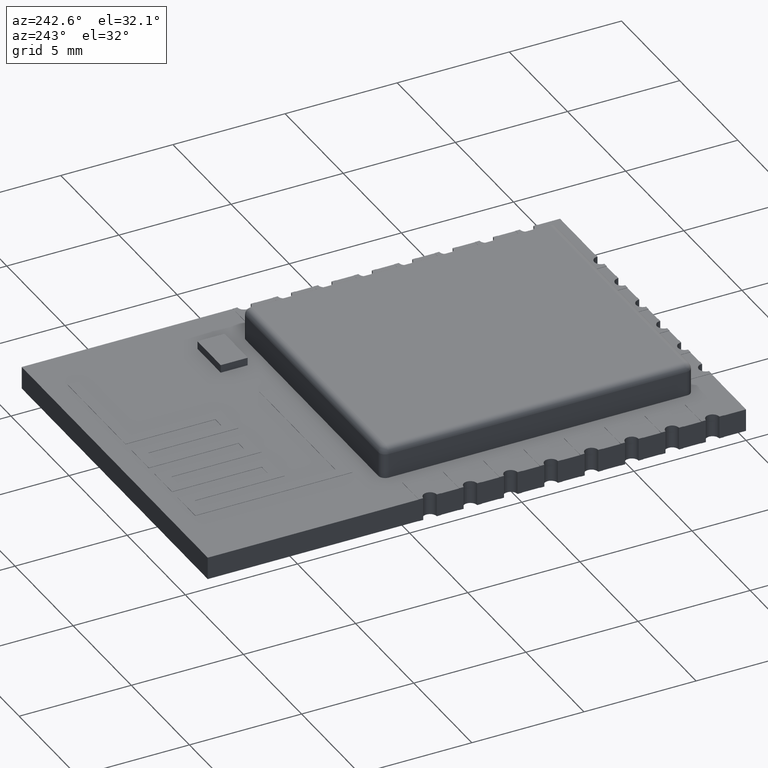
[diagram: clean part render]
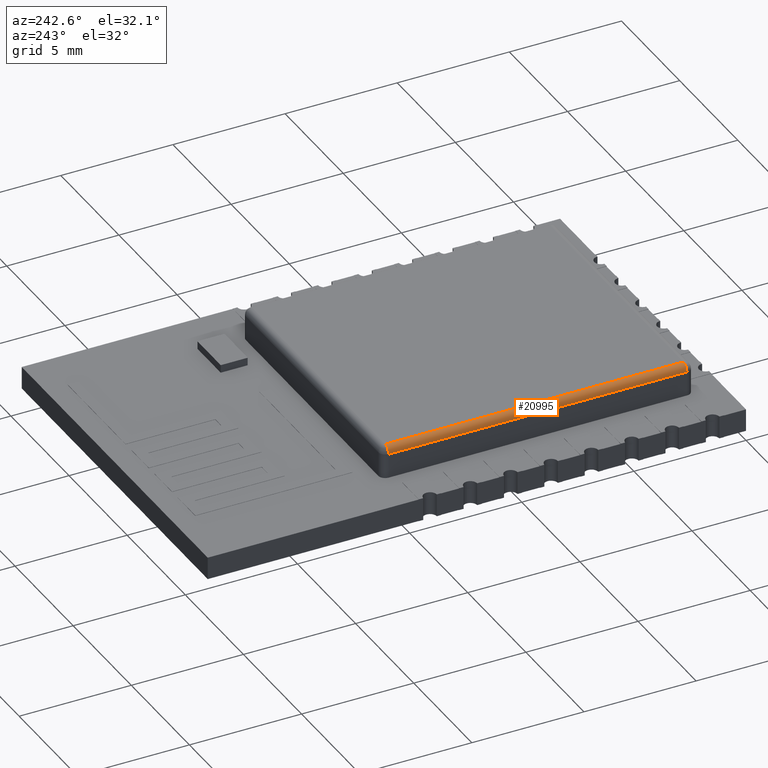
[diagram: same view with one face highlighted and labeled with its STEP entity id]
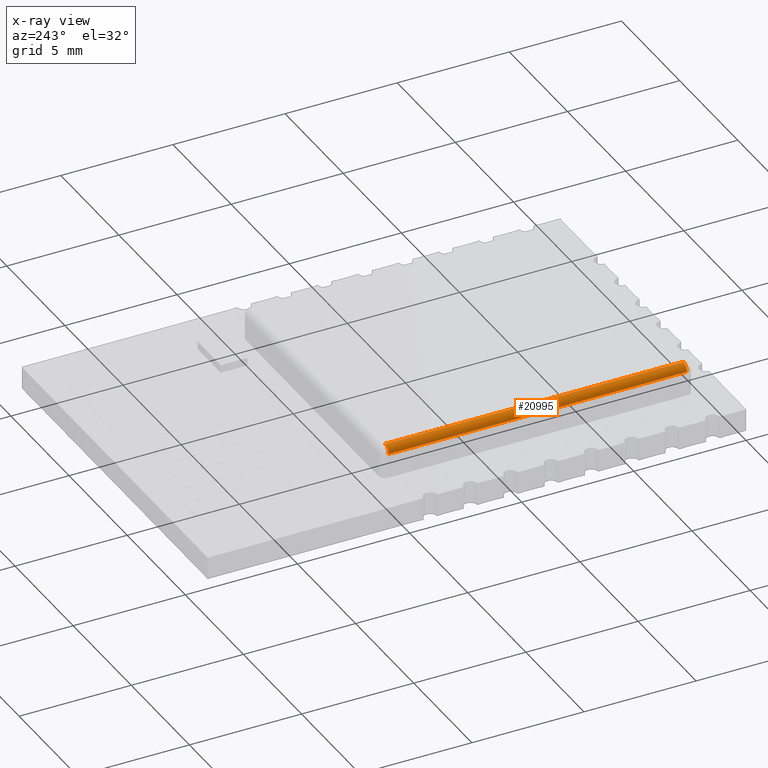
[diagram: x-ray of the same camera — body ghosted, the highlighted face saturated]
A machine part, auxiliary view. The second image highlights one B-rep face of the part: STEP entity #20995.
The next image is the same camera in x-ray: the body ghosted, the highlighted face saturated — about 0% of this face is hidden behind the body in this view.
In plain terms, the highlighted cylindrical surface (edge-blend (fillet) strip) has radius 0.3 mm, axis along (0, -1, 0).
Its self-contained STEP definition (entity closure, byte-faithful):
#2867 = PLANE('',#2868);
#2868 = AXIS2_PLACEMENT_3D('',#2869,#2870,#2871);
#2869 = CARTESIAN_POINT('',(2.,15.2,1.));
#2870 = DIRECTION('',(1.,0.,0.));
#2871 = DIRECTION('',(0.,-1.,0.));
#11102 = VERTEX_POINT('',#11103);
#11103 = CARTESIAN_POINT('',(2.,14.9,2.1));
#11139 = SPHERICAL_SURFACE('',#11140,0.3);
#11140 = AXIS2_PLACEMENT_3D('',#11141,#11142,#11143);
#11141 = CARTESIAN_POINT('',(2.3,14.9,2.1));
#11142 = DIRECTION('',(-0.,-0.,-1.));
#11143 = DIRECTION('',(0.,1.,0.));
#11157 = EDGE_CURVE('',#11102,#11158,#11160,.T.);
#11158 = VERTEX_POINT('',#11159);
#11159 = CARTESIAN_POINT('',(2.,1.6,2.1));
#11160 = SURFACE_CURVE('',#11161,(#11165,#11172),.PCURVE_S1.);
#11161 = LINE('',#11162,#11163);
#11162 = CARTESIAN_POINT('',(2.,15.2,2.1));
#11163 = VECTOR('',#11164,1.);
#11164 = DIRECTION('',(0.,-1.,0.));
#11165 = PCURVE('',#2867,#11166);
#11166 = DEFINITIONAL_REPRESENTATION('',(#11167),#11171);
#11167 = LINE('',#11168,#11169);
#11168 = CARTESIAN_POINT('',(0.,-1.1));
#11169 = VECTOR('',#11170,1.);
#11170 = DIRECTION('',(1.,0.));
#11171 = ( GEOMETRIC_REPRESENTATION_CONTEXT(2) 
PARAMETRIC_REPRESENTATION_CONTEXT() REPRESENTATION_CONTEXT('2D SPACE',''
  ) );
#11172 = PCURVE('',#11173,#11178);
#11173 = CYLINDRICAL_SURFACE('',#11174,0.3);
#11174 = AXIS2_PLACEMENT_3D('',#11175,#11176,#11177);
#11175 = CARTESIAN_POINT('',(2.3,15.2,2.1));
#11176 = DIRECTION('',(0.,-1.,0.));
#11177 = DIRECTION('',(-1.,0.,0.));
#11178 = DEFINITIONAL_REPRESENTATION('',(#11179),#11183);
#11179 = LINE('',#11180,#11181);
#11180 = CARTESIAN_POINT('',(-0.,0.));
#11181 = VECTOR('',#11182,1.);
#11182 = DIRECTION('',(-0.,1.));
#11183 = ( GEOMETRIC_REPRESENTATION_CONTEXT(2) 
PARAMETRIC_REPRESENTATION_CONTEXT() REPRESENTATION_CONTEXT('2D SPACE',''
  ) );
#11226 = SPHERICAL_SURFACE('',#11227,0.3);
#11227 = AXIS2_PLACEMENT_3D('',#11228,#11229,#11230);
#11228 = CARTESIAN_POINT('',(2.3,1.6,2.1));
#11229 = DIRECTION('',(-0.,-0.,-1.));
#11230 = DIRECTION('',(0.,-1.,0.));
#20755 = VERTEX_POINT('',#20756);
#20756 = CARTESIAN_POINT('',(2.3,1.6,2.4));
#20792 = PLANE('',#20793);
#20793 = AXIS2_PLACEMENT_3D('',#20794,#20795,#20796);
#20794 = CARTESIAN_POINT('',(8.,8.25,2.4));
#20795 = DIRECTION('',(0.,0.,1.));
#20796 = DIRECTION('',(1.,0.,0.));
#20928 = VERTEX_POINT('',#20929);
#20929 = CARTESIAN_POINT('',(2.3,14.9,2.4));
#20975 = EDGE_CURVE('',#20928,#11102,#20976,.T.);
#20976 = SURFACE_CURVE('',#20977,(#20982,#20988),.PCURVE_S1.);
#20977 = CIRCLE('',#20978,0.3);
#20978 = AXIS2_PLACEMENT_3D('',#20979,#20980,#20981);
#20979 = CARTESIAN_POINT('',(2.3,14.9,2.1));
#20980 = DIRECTION('',(-2.947812203983E-15,-1.,-0.));
#20981 = DIRECTION('',(-1.,2.947812203983E-15,0.));
#20982 = PCURVE('',#11139,#20983);
#20983 = DEFINITIONAL_REPRESENTATION('',(#20984),#20987);
#20984 = B_SPLINE_CURVE_WITH_KNOTS('',1,(#20985,#20986),.UNSPECIFIED.,
  .F.,.F.,(2,2),(4.712388980385,6.28318530718),
  .PIECEWISE_BEZIER_KNOTS.);
#20985 = CARTESIAN_POINT('',(-1.570796326795,-1.570796326795));
#20986 = CARTESIAN_POINT('',(-1.570796326795,0.));
#20987 = ( GEOMETRIC_REPRESENTATION_CONTEXT(2) 
PARAMETRIC_REPRESENTATION_CONTEXT() REPRESENTATION_CONTEXT('2D SPACE',''
  ) );
#20988 = PCURVE('',#11173,#20989);
#20989 = DEFINITIONAL_REPRESENTATION('',(#20990),#20993);
#20990 = B_SPLINE_CURVE_WITH_KNOTS('',1,(#20991,#20992),.UNSPECIFIED.,
  .F.,.F.,(2,2),(4.712388980385,6.28318530718),
  .PIECEWISE_BEZIER_KNOTS.);
#20991 = CARTESIAN_POINT('',(-1.570796326795,0.3));
#20992 = CARTESIAN_POINT('',(0.,0.3));
#20993 = ( GEOMETRIC_REPRESENTATION_CONTEXT(2) 
PARAMETRIC_REPRESENTATION_CONTEXT() REPRESENTATION_CONTEXT('2D SPACE',''
  ) );
#20995 = ADVANCED_FACE('',(#20996),#11173,.T.);
#20996 = FACE_BOUND('',#20997,.F.);
#20997 = EDGE_LOOP('',(#20998,#20999,#21020,#21040));
#20998 = ORIENTED_EDGE('',*,*,#20975,.F.);
#20999 = ORIENTED_EDGE('',*,*,#21000,.T.);
#21000 = EDGE_CURVE('',#20928,#20755,#21001,.T.);
#21001 = SURFACE_CURVE('',#21002,(#21006,#21013),.PCURVE_S1.);
#21002 = LINE('',#21003,#21004);
#21003 = CARTESIAN_POINT('',(2.3,15.2,2.4));
#21004 = VECTOR('',#21005,1.);
#21005 = DIRECTION('',(0.,-1.,0.));
#21006 = PCURVE('',#11173,#21007);
#21007 = DEFINITIONAL_REPRESENTATION('',(#21008),#21012);
#21008 = LINE('',#21009,#21010);
#21009 = CARTESIAN_POINT('',(-1.570796326795,0.));
#21010 = VECTOR('',#21011,1.);
#21011 = DIRECTION('',(-0.,1.));
#21012 = ( GEOMETRIC_REPRESENTATION_CONTEXT(2) 
PARAMETRIC_REPRESENTATION_CONTEXT() REPRESENTATION_CONTEXT('2D SPACE',''
  ) );
#21013 = PCURVE('',#20792,#21014);
#21014 = DEFINITIONAL_REPRESENTATION('',(#21015),#21019);
#21015 = LINE('',#21016,#21017);
#21016 = CARTESIAN_POINT('',(-5.7,6.95));
#21017 = VECTOR('',#21018,1.);
#21018 = DIRECTION('',(0.,-1.));
#21019 = ( GEOMETRIC_REPRESENTATION_CONTEXT(2) 
PARAMETRIC_REPRESENTATION_CONTEXT() REPRESENTATION_CONTEXT('2D SPACE',''
  ) );
#21020 = ORIENTED_EDGE('',*,*,#21021,.T.);
#21021 = EDGE_CURVE('',#20755,#11158,#21022,.T.);
#21022 = SURFACE_CURVE('',#21023,(#21028,#21034),.PCURVE_S1.);
#21023 = CIRCLE('',#21024,0.3);
#21024 = AXIS2_PLACEMENT_3D('',#21025,#21026,#21027);
#21025 = CARTESIAN_POINT('',(2.3,1.6,2.1));
#21026 = DIRECTION('',(6.123233995737E-17,-1.,0.));
#21027 = DIRECTION('',(-1.,-6.123233995737E-17,0.));
#21028 = PCURVE('',#11173,#21029);
#21029 = DEFINITIONAL_REPRESENTATION('',(#21030),#21033);
#21030 = B_SPLINE_CURVE_WITH_KNOTS('',1,(#21031,#21032),.UNSPECIFIED.,
  .F.,.F.,(2,2),(4.712388980385,6.28318530718),
  .PIECEWISE_BEZIER_KNOTS.);
#21031 = CARTESIAN_POINT('',(-1.570796326795,13.6));
#21032 = CARTESIAN_POINT('',(0.,13.6));
#21033 = ( GEOMETRIC_REPRESENTATION_CONTEXT(2) 
PARAMETRIC_REPRESENTATION_CONTEXT() REPRESENTATION_CONTEXT('2D SPACE',''
  ) );
#21034 = PCURVE('',#11226,#21035);
#21035 = DEFINITIONAL_REPRESENTATION('',(#21036),#21039);
#21036 = B_SPLINE_CURVE_WITH_KNOTS('',1,(#21037,#21038),.UNSPECIFIED.,
  .F.,.F.,(2,2),(4.712388980385,6.28318530718),
  .PIECEWISE_BEZIER_KNOTS.);
#21037 = CARTESIAN_POINT('',(1.570796326795,-1.570796326795));
#21038 = CARTESIAN_POINT('',(1.570796326795,0.));
#21039 = ( GEOMETRIC_REPRESENTATION_CONTEXT(2) 
PARAMETRIC_REPRESENTATION_CONTEXT() REPRESENTATION_CONTEXT('2D SPACE',''
  ) );
#21040 = ORIENTED_EDGE('',*,*,#11157,.F.);